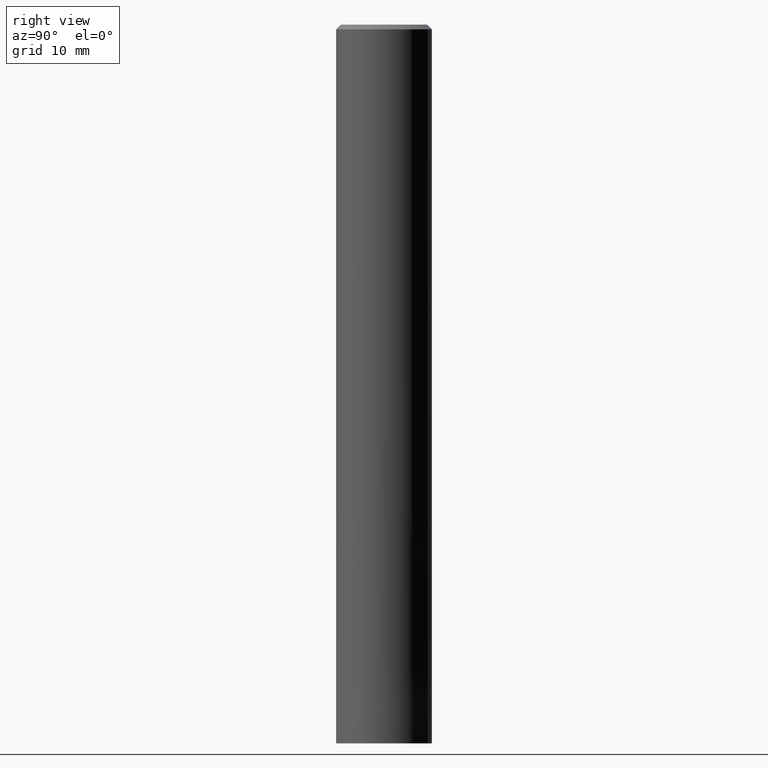
[diagram: clean part render]
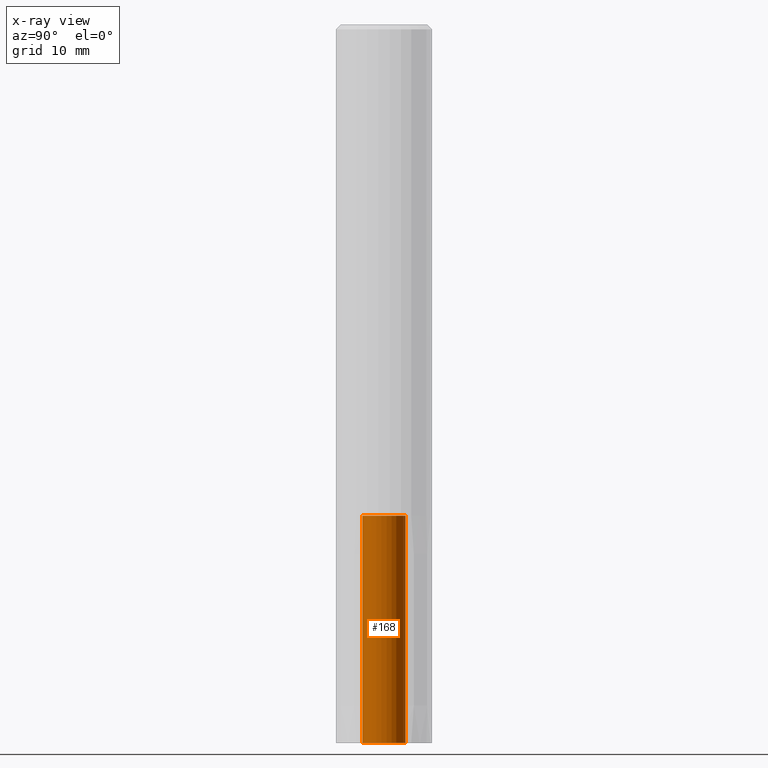
[diagram: x-ray — body ghosted, one internal face saturated and labeled with its STEP entity id]
A machine part, right view, then the same camera in x-ray: the body is ghosted and one INTERNAL B-rep face — a face not visible from any outside direction — is saturated and labeled: STEP entity #168.
In plain terms, the highlighted cylindrical surface (edge-blend (fillet) strip) has radius 1.8 mm, axis along (-0, -0, 1).
Its self-contained STEP definition (entity closure, byte-faithful):
#106=EDGE_CURVE('',#200,#212,#251,.T.);
#132=EDGE_CURVE('',#210,#212,#280,.T.);
#146=VERTEX_POINT('',#295);
#156=EDGE_CURVE('',#146,#200,#307,.T.);
#168=ADVANCED_FACE('',(#320),#321,.F.);
#198=EDGE_CURVE('',#210,#146,#356,.T.);
#200=VERTEX_POINT('',#358);
#210=VERTEX_POINT('',#371);
#212=VERTEX_POINT('',#373);
#251=LINE('',#411,#412);
#280=CIRCLE('',#453,1.8);
#295=CARTESIAN_POINT('',(0.0,1.8,-60.0));
#307=CIRCLE('',#482,1.8);
#320=FACE_OUTER_BOUND('',#497,.T.);
#321=CYLINDRICAL_SURFACE('',#498,1.8);
#356=LINE('',#542,#543);
#358=CARTESIAN_POINT('',(2.20429143688028E-016,-1.8,-60.0));
#371=CARTESIAN_POINT('',(0.0,1.8,-41.0));
#373=CARTESIAN_POINT('',(2.20429143688028E-016,-1.8,-41.0));
#411=CARTESIAN_POINT('',(2.20429143688028E-016,-1.8,-50.5));
#412=VECTOR('',#583,1.0);
#453=AXIS2_PLACEMENT_3D('',#616,#617,#618);
#482=AXIS2_PLACEMENT_3D('',#649,#650,#651);
#497=EDGE_LOOP('',(#660,#661,#662,#663));
#498=AXIS2_PLACEMENT_3D('',#664,#665,#666);
#542=CARTESIAN_POINT('',(-2.20429143688028E-016,1.8,-50.5));
#543=VECTOR('',#718,1.0);
#583=DIRECTION('',(0.0,-0.0,1.0));
#616=CARTESIAN_POINT('',(0.0,0.0,-41.0));
#617=DIRECTION('',(0.0,0.0,-1.0));
#618=DIRECTION('',(0.0,1.0,0.0));
#649=CARTESIAN_POINT('',(0.0,0.0,-60.0));
#650=DIRECTION('',(0.0,0.0,-1.0));
#651=DIRECTION('',(0.0,1.0,0.0));
#660=ORIENTED_EDGE('',*,*,#198,.T.);
#661=ORIENTED_EDGE('',*,*,#156,.T.);
#662=ORIENTED_EDGE('',*,*,#106,.T.);
#663=ORIENTED_EDGE('',*,*,#132,.F.);
#664=CARTESIAN_POINT('',(0.0,0.0,-50.5));
#665=DIRECTION('',(-0.0,-0.0,1.0));
#666=DIRECTION('',(0.0,1.0,0.0));
#718=DIRECTION('',(0.0,-0.0,-1.0));